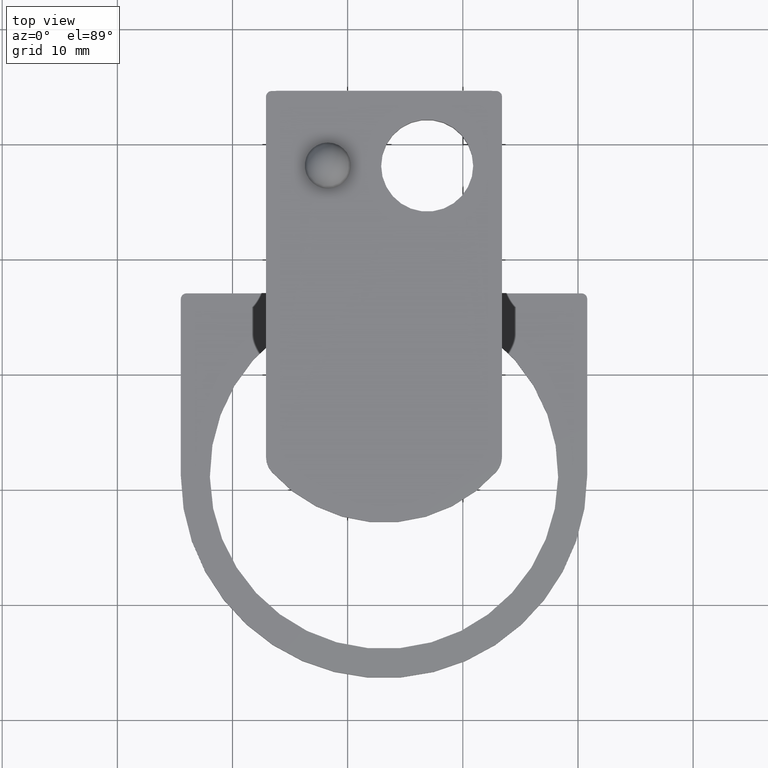
[diagram: clean part render]
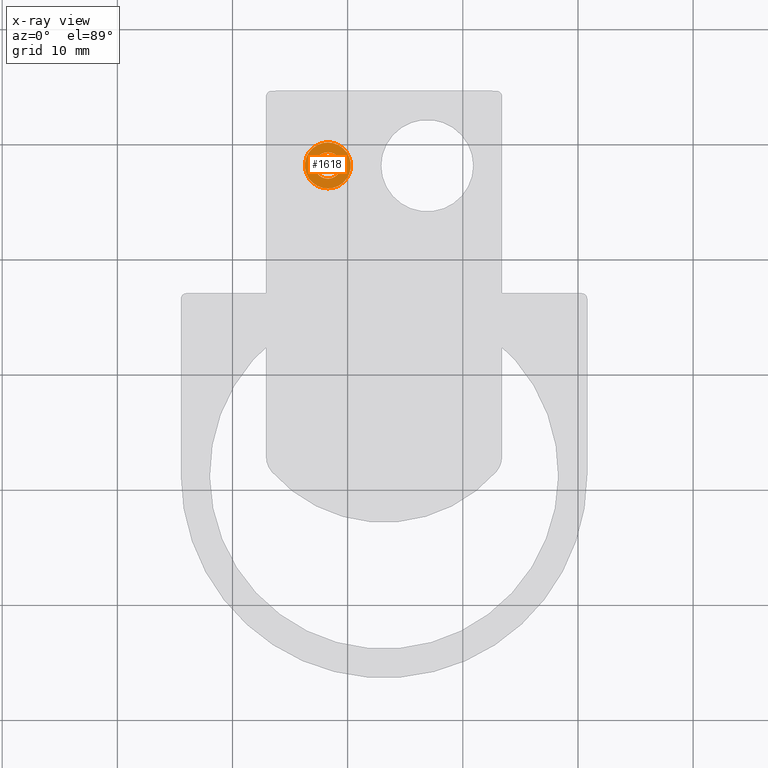
[diagram: x-ray — body ghosted, one internal face saturated and labeled with its STEP entity id]
A machine part, top view, then the same camera in x-ray: the body is ghosted and one INTERNAL B-rep face — a face not visible from any outside direction — is saturated and labeled: STEP entity #1618.
In plain terms, the highlighted planar face has unit normal (0, -0, -1).
Its self-contained STEP definition (entity closure, byte-faithful):
#1549=CARTESIAN_POINT('',(8.326673E-016,1.150000000000000,0.0));
#1550=VERTEX_POINT('',#1549);
#1551=CARTESIAN_POINT('',(1.128446E-015,3.554529E-016,0.0));
#1552=DIRECTION('',(1.0,0.0,0.0));
#1553=DIRECTION('',(0.0,1.0,0.0));
#1554=AXIS2_PLACEMENT_3D('',#1551,#1552,#1553);
#1555=CIRCLE('',#1554,1.149999999999999);
#1556=EDGE_CURVE('',#1550,#1550,#1555,.T.);
#1595=CARTESIAN_POINT('',(5.551115E-016,2.000000000000000,0.0));
#1596=VERTEX_POINT('',#1595);
#1597=CARTESIAN_POINT('',(1.069509E-015,3.554529E-016,0.0));
#1598=DIRECTION('',(1.0,0.0,0.0));
#1599=DIRECTION('',(0.0,1.0,0.0));
#1600=AXIS2_PLACEMENT_3D('',#1597,#1598,#1599);
#1601=CIRCLE('',#1600,2.0);
#1602=EDGE_CURVE('',#1596,#1596,#1601,.T.);
#1607=CARTESIAN_POINT('',(6.938894E-016,1.575000000000000,0.0));
#1608=DIRECTION('',(1.0,0.0,0.0));
#1609=DIRECTION('',(0.0,0.0,-1.0));
#1610=AXIS2_PLACEMENT_3D('',#1607,#1608,#1609);
#1611=PLANE('',#1610);
#1612=ORIENTED_EDGE('',*,*,#1602,.T.);
#1613=EDGE_LOOP('',(#1612));
#1614=FACE_OUTER_BOUND('',#1613,.T.);
#1615=ORIENTED_EDGE('',*,*,#1556,.F.);
#1616=EDGE_LOOP('',(#1615));
#1617=FACE_BOUND('',#1616,.T.);
#1618=ADVANCED_FACE('',(#1614,#1617),#1611,.T.);